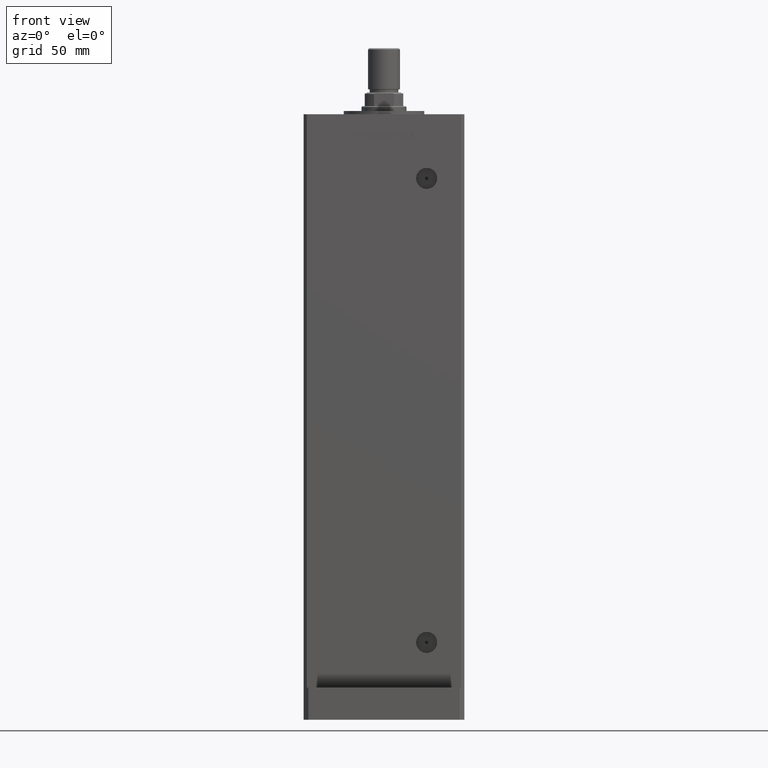
[diagram: clean part render]
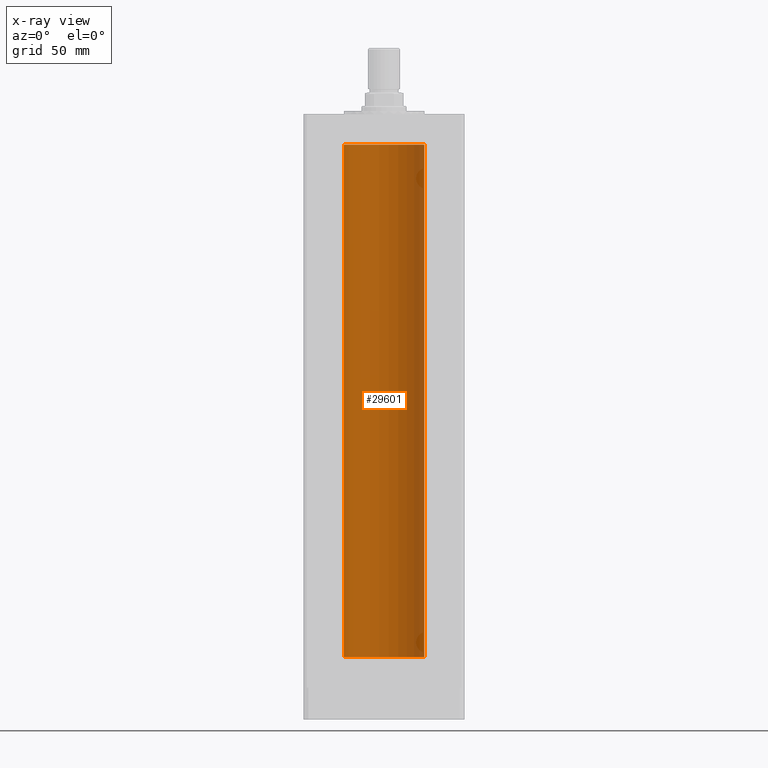
[diagram: x-ray — body ghosted, one internal face saturated and labeled with its STEP entity id]
A machine part, front view, then the same camera in x-ray: the body is ghosted and one INTERNAL B-rep face — a face not visible from any outside direction — is saturated and labeled: STEP entity #29601.
In plain terms, the highlighted cylindrical surface (partial cylindrical patch) has radius 25 mm, axis along (-0, -0, -1).
Its self-contained STEP definition (entity closure, byte-faithful):
#943 = CARTESIAN_POINT ( 'NONE',  ( 0.000000000000000000, 0.000000000000000000, 318.5000000000000000 ) ) ;
#1053 = VERTEX_POINT ( 'NONE', #42246 ) ;
#1363 = CIRCLE ( 'NONE', #35472, 25.00000000000000000 ) ;
#3008 = CARTESIAN_POINT ( 'NONE',  ( 0.000000000000000000, 0.000000000000000000, 0.000000000000000000 ) ) ;
#5868 = FACE_OUTER_BOUND ( 'NONE', #43115, .T. ) ;
#10898 = CARTESIAN_POINT ( 'NONE',  ( 0.000000000000000000, 0.000000000000000000, 318.5000000000000000 ) ) ;
#15665 = VECTOR ( 'NONE', #16917, 1000.000000000000000 ) ;
#16917 = DIRECTION ( 'NONE',  ( -0.000000000000000000, -0.000000000000000000, -1.000000000000000000 ) ) ;
#17830 = VERTEX_POINT ( 'NONE', #53650 ) ;
#19342 = CIRCLE ( 'NONE', #35962, 25.00000000000000000 ) ;
#19680 = DIRECTION ( 'NONE',  ( -0.000000000000000000, 0.000000000000000000, 1.000000000000000000 ) ) ;
#19957 = CARTESIAN_POINT ( 'NONE',  ( 25.00000000000000000, 3.061616997868383043E-15, 0.000000000000000000 ) ) ;
#20369 = ORIENTED_EDGE ( 'NONE', *, *, #24505, .F. ) ;
#22275 = CYLINDRICAL_SURFACE ( 'NONE', #50854, 25.00000000000000000 ) ;
#22330 = DIRECTION ( 'NONE',  ( -0.000000000000000000, -0.000000000000000000, -1.000000000000000000 ) ) ;
#24505 = EDGE_CURVE ( 'NONE', #17830, #32375, #46729, .T. ) ;
#26725 = CARTESIAN_POINT ( 'NONE',  ( 25.00000000000000000, 3.061616997868383043E-15, 318.5000000000000000 ) ) ;
#27325 = DIRECTION ( 'NONE',  ( -0.000000000000000000, 0.000000000000000000, 1.000000000000000000 ) ) ;
#28703 = LINE ( 'NONE', #45407, #15665 ) ;
#29601 = ADVANCED_FACE ( 'NONE', ( #5868 ), #22275, .F. ) ;
#32375 = VERTEX_POINT ( 'NONE', #19957 ) ;
#34874 = DIRECTION ( 'NONE',  ( -1.000000000000000000, 0.000000000000000000, 0.000000000000000000 ) ) ;
#35425 = ORIENTED_EDGE ( 'NONE', *, *, #51552, .F. ) ;
#35472 = AXIS2_PLACEMENT_3D ( 'NONE', #10898, #27325, #44299 ) ;
#35962 = AXIS2_PLACEMENT_3D ( 'NONE', #3008, #19680, #45714 ) ;
#42246 = CARTESIAN_POINT ( 'NONE',  ( -25.00000000000000000, 0.000000000000000000, 0.000000000000000000 ) ) ;
#43003 = EDGE_CURVE ( 'NONE', #17830, #48275, #1363, .T. ) ;
#43115 = EDGE_LOOP ( 'NONE', ( #20369, #43168, #47900, #35425 ) ) ;
#43168 = ORIENTED_EDGE ( 'NONE', *, *, #43003, .T. ) ;
#44299 = DIRECTION ( 'NONE',  ( 1.000000000000000000, 0.000000000000000000, 0.000000000000000000 ) ) ;
#44601 = VECTOR ( 'NONE', #22330, 1000.000000000000000 ) ;
#45407 = CARTESIAN_POINT ( 'NONE',  ( -25.00000000000000000, 0.000000000000000000, 318.5000000000000000 ) ) ;
#45714 = DIRECTION ( 'NONE',  ( 1.000000000000000000, 0.000000000000000000, 0.000000000000000000 ) ) ;
#46729 = LINE ( 'NONE', #26725, #44601 ) ;
#47763 = DIRECTION ( 'NONE',  ( -0.000000000000000000, -0.000000000000000000, -1.000000000000000000 ) ) ;
#47900 = ORIENTED_EDGE ( 'NONE', *, *, #50264, .T. ) ;
#48275 = VERTEX_POINT ( 'NONE', #53561 ) ;
#50264 = EDGE_CURVE ( 'NONE', #48275, #1053, #28703, .T. ) ;
#50854 = AXIS2_PLACEMENT_3D ( 'NONE', #943, #47763, #34874 ) ;
#51552 = EDGE_CURVE ( 'NONE', #32375, #1053, #19342, .T. ) ;
#53561 = CARTESIAN_POINT ( 'NONE',  ( -25.00000000000000000, 0.000000000000000000, 318.5000000000000000 ) ) ;
#53650 = CARTESIAN_POINT ( 'NONE',  ( 25.00000000000000000, 3.061616997868383043E-15, 318.5000000000000000 ) ) ;